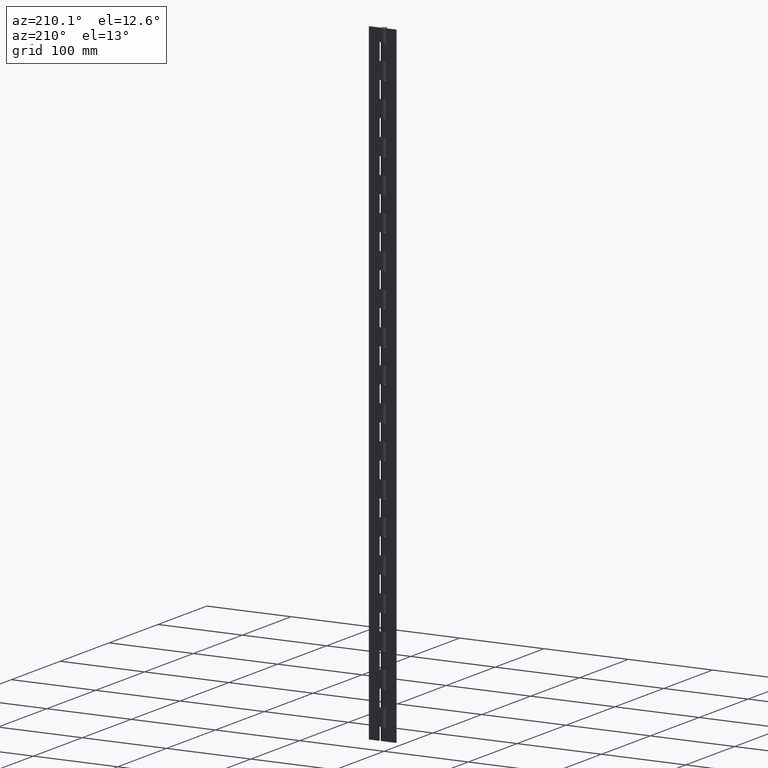
[diagram: clean part render]
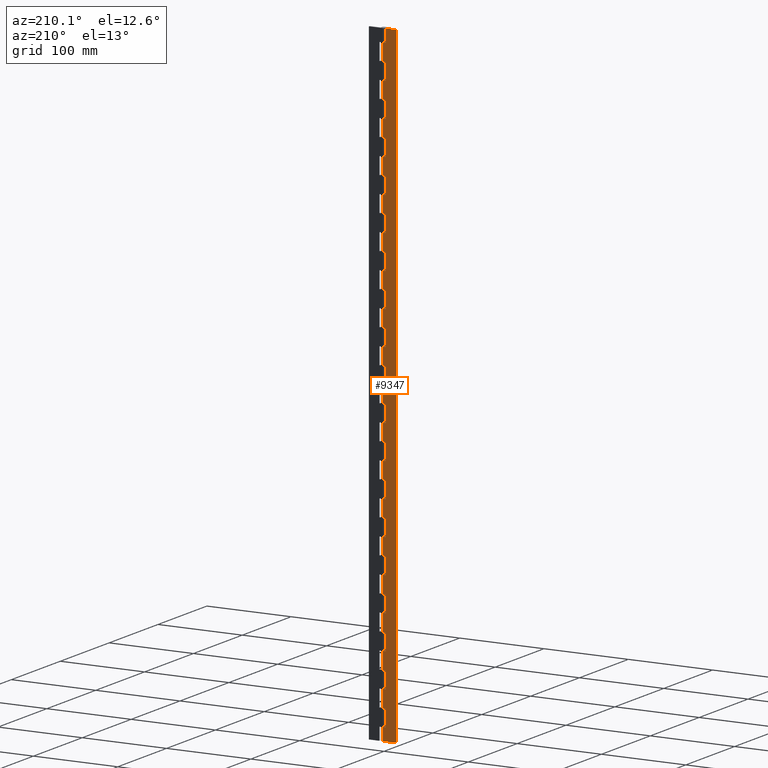
[diagram: same view with one face highlighted and labeled with its STEP entity id]
A machine part, auxiliary view. The second image highlights one B-rep face of the part: STEP entity #9347.
In plain terms, the highlighted face is a freeform B-spline surface patch.
Its self-contained STEP definition (entity closure, byte-faithful):
#5549=CARTESIAN_POINT('',(1.989998E-016,3.250000000000000,15.000021999999850));
#5550=VERTEX_POINT('',#5549);
#5570=CARTESIAN_POINT('',(-4.0,3.250000000000000,15.000021999999850));
#5571=VERTEX_POINT('',#5570);
#5572=CARTESIAN_POINT('',(1.989998E-016,3.250000000000000,15.000021999999850));
#5573=CARTESIAN_POINT('',(-4.0,3.250000000000000,15.000021999999850));
#5574=QUASI_UNIFORM_CURVE('',1,(#5572,#5573),.UNSPECIFIED.,.F.,.U.);
#5575=EDGE_CURVE('',#5550,#5571,#5574,.T.);
#5625=CARTESIAN_POINT('',(1.989998E-016,3.250000000000000,35.000021999999852));
#5626=VERTEX_POINT('',#5625);
#5683=CARTESIAN_POINT('',(-4.0,3.250000000000000,35.000021999999852));
#5684=VERTEX_POINT('',#5683);
#5690=CARTESIAN_POINT('',(-4.0,3.250000000000000,35.000021999999852));
#5691=CARTESIAN_POINT('',(1.989998E-016,3.250000000000000,35.000021999999852));
#5692=QUASI_UNIFORM_CURVE('',1,(#5690,#5691),.UNSPECIFIED.,.F.,.U.);
#5693=EDGE_CURVE('',#5684,#5626,#5692,.T.);
#5704=CARTESIAN_POINT('',(-4.0,3.250000000000000,15.000021999999850));
#5705=CARTESIAN_POINT('',(-4.0,3.250000000000000,35.000021999999852));
#5706=QUASI_UNIFORM_CURVE('',1,(#5704,#5705),.UNSPECIFIED.,.F.,.U.);
#5707=EDGE_CURVE('',#5571,#5684,#5706,.T.);
#5725=CARTESIAN_POINT('',(1.989998E-016,3.250000000000000,55.000021999999802));
#5726=VERTEX_POINT('',#5725);
#5746=CARTESIAN_POINT('',(-4.0,3.250000000000000,55.000021999999802));
#5747=VERTEX_POINT('',#5746);
#5748=CARTESIAN_POINT('',(1.989998E-016,3.250000000000000,55.000021999999802));
#5749=CARTESIAN_POINT('',(-4.0,3.250000000000000,55.000021999999802));
#5750=QUASI_UNIFORM_CURVE('',1,(#5748,#5749),.UNSPECIFIED.,.F.,.U.);
#5751=EDGE_CURVE('',#5726,#5747,#5750,.T.);
#5801=CARTESIAN_POINT('',(1.989998E-016,3.250000000000000,75.000021999999802));
#5802=VERTEX_POINT('',#5801);
#5859=CARTESIAN_POINT('',(-4.0,3.250000000000000,75.000021999999802));
#5860=VERTEX_POINT('',#5859);
#5866=CARTESIAN_POINT('',(-4.0,3.250000000000000,75.000021999999802));
#5867=CARTESIAN_POINT('',(1.989998E-016,3.250000000000000,75.000021999999802));
#5868=QUASI_UNIFORM_CURVE('',1,(#5866,#5867),.UNSPECIFIED.,.F.,.U.);
#5869=EDGE_CURVE('',#5860,#5802,#5868,.T.);
#5880=CARTESIAN_POINT('',(-4.0,3.250000000000000,55.000021999999802));
#5881=CARTESIAN_POINT('',(-4.0,3.250000000000000,75.000021999999802));
#5882=QUASI_UNIFORM_CURVE('',1,(#5880,#5881),.UNSPECIFIED.,.F.,.U.);
#5883=EDGE_CURVE('',#5747,#5860,#5882,.T.);
#5901=CARTESIAN_POINT('',(1.989998E-016,3.250000000000000,95.000021999999802));
#5902=VERTEX_POINT('',#5901);
#5922=CARTESIAN_POINT('',(-4.0,3.250000000000000,95.000021999999802));
#5923=VERTEX_POINT('',#5922);
#5924=CARTESIAN_POINT('',(1.989998E-016,3.250000000000000,95.000021999999802));
#5925=CARTESIAN_POINT('',(-4.0,3.250000000000000,95.000021999999802));
#5926=QUASI_UNIFORM_CURVE('',1,(#5924,#5925),.UNSPECIFIED.,.F.,.U.);
#5927=EDGE_CURVE('',#5902,#5923,#5926,.T.);
#5977=CARTESIAN_POINT('',(1.989998E-016,3.250000000000000,115.000021999999800));
#5978=VERTEX_POINT('',#5977);
#6035=CARTESIAN_POINT('',(-4.0,3.250000000000000,115.000021999999800));
#6036=VERTEX_POINT('',#6035);
#6042=CARTESIAN_POINT('',(-4.0,3.250000000000000,115.000021999999800));
#6043=CARTESIAN_POINT('',(1.989998E-016,3.250000000000000,115.000021999999800));
#6044=QUASI_UNIFORM_CURVE('',1,(#6042,#6043),.UNSPECIFIED.,.F.,.U.);
#6045=EDGE_CURVE('',#6036,#5978,#6044,.T.);
#6056=CARTESIAN_POINT('',(-4.0,3.250000000000000,95.000021999999802));
#6057=CARTESIAN_POINT('',(-4.0,3.250000000000000,115.000021999999800));
#6058=QUASI_UNIFORM_CURVE('',1,(#6056,#6057),.UNSPECIFIED.,.F.,.U.);
#6059=EDGE_CURVE('',#5923,#6036,#6058,.T.);
#6077=CARTESIAN_POINT('',(1.989998E-016,3.250000000000000,135.000021999999800));
#6078=VERTEX_POINT('',#6077);
#6098=CARTESIAN_POINT('',(-4.0,3.250000000000000,135.000021999999800));
#6099=VERTEX_POINT('',#6098);
#6100=CARTESIAN_POINT('',(1.989998E-016,3.250000000000000,135.000021999999800));
#6101=CARTESIAN_POINT('',(-4.0,3.250000000000000,135.000021999999800));
#6102=QUASI_UNIFORM_CURVE('',1,(#6100,#6101),.UNSPECIFIED.,.F.,.U.);
#6103=EDGE_CURVE('',#6078,#6099,#6102,.T.);
#6153=CARTESIAN_POINT('',(1.989998E-016,3.250000000000000,155.000022000000000));
#6154=VERTEX_POINT('',#6153);
#6211=CARTESIAN_POINT('',(-4.0,3.250000000000000,155.000022000000000));
#6212=VERTEX_POINT('',#6211);
#6218=CARTESIAN_POINT('',(-4.0,3.250000000000000,155.000022000000000));
#6219=CARTESIAN_POINT('',(1.989998E-016,3.250000000000000,155.000022000000000));
#6220=QUASI_UNIFORM_CURVE('',1,(#6218,#6219),.UNSPECIFIED.,.F.,.U.);
#6221=EDGE_CURVE('',#6212,#6154,#6220,.T.);
#6232=CARTESIAN_POINT('',(-4.0,3.250000000000000,135.000021999999800));
#6233=CARTESIAN_POINT('',(-4.0,3.250000000000000,155.000022000000000));
#6234=QUASI_UNIFORM_CURVE('',1,(#6232,#6233),.UNSPECIFIED.,.F.,.U.);
#6235=EDGE_CURVE('',#6099,#6212,#6234,.T.);
#6253=CARTESIAN_POINT('',(1.989998E-016,3.250000000000000,175.000022000000000));
#6254=VERTEX_POINT('',#6253);
#6274=CARTESIAN_POINT('',(-4.0,3.250000000000000,175.000022000000000));
#6275=VERTEX_POINT('',#6274);
#6276=CARTESIAN_POINT('',(1.989998E-016,3.250000000000000,175.000022000000000));
#6277=CARTESIAN_POINT('',(-4.0,3.250000000000000,175.000022000000000));
#6278=QUASI_UNIFORM_CURVE('',1,(#6276,#6277),.UNSPECIFIED.,.F.,.U.);
#6279=EDGE_CURVE('',#6254,#6275,#6278,.T.);
#6329=CARTESIAN_POINT('',(1.989998E-016,3.250000000000000,195.000022000000000));
#6330=VERTEX_POINT('',#6329);
#6387=CARTESIAN_POINT('',(-4.0,3.250000000000000,195.000022000000000));
#6388=VERTEX_POINT('',#6387);
#6394=CARTESIAN_POINT('',(-4.0,3.250000000000000,195.000022000000000));
#6395=CARTESIAN_POINT('',(1.989998E-016,3.250000000000000,195.000022000000000));
#6396=QUASI_UNIFORM_CURVE('',1,(#6394,#6395),.UNSPECIFIED.,.F.,.U.);
#6397=EDGE_CURVE('',#6388,#6330,#6396,.T.);
#6408=CARTESIAN_POINT('',(-4.0,3.250000000000000,175.000022000000000));
#6409=CARTESIAN_POINT('',(-4.0,3.250000000000000,195.000022000000000));
#6410=QUASI_UNIFORM_CURVE('',1,(#6408,#6409),.UNSPECIFIED.,.F.,.U.);
#6411=EDGE_CURVE('',#6275,#6388,#6410,.T.);
#6429=CARTESIAN_POINT('',(1.989998E-016,3.250000000000000,215.000022000000000));
#6430=VERTEX_POINT('',#6429);
#6450=CARTESIAN_POINT('',(-4.0,3.250000000000000,215.000022000000000));
#6451=VERTEX_POINT('',#6450);
#6452=CARTESIAN_POINT('',(1.989998E-016,3.250000000000000,215.000022000000000));
#6453=CARTESIAN_POINT('',(-4.0,3.250000000000000,215.000022000000000));
#6454=QUASI_UNIFORM_CURVE('',1,(#6452,#6453),.UNSPECIFIED.,.F.,.U.);
#6455=EDGE_CURVE('',#6430,#6451,#6454,.T.);
#6505=CARTESIAN_POINT('',(1.989998E-016,3.250000000000000,235.000022000000000));
#6506=VERTEX_POINT('',#6505);
#6563=CARTESIAN_POINT('',(-4.0,3.250000000000000,235.000022000000000));
#6564=VERTEX_POINT('',#6563);
#6570=CARTESIAN_POINT('',(-4.0,3.250000000000000,235.000022000000000));
#6571=CARTESIAN_POINT('',(1.989998E-016,3.250000000000000,235.000022000000000));
#6572=QUASI_UNIFORM_CURVE('',1,(#6570,#6571),.UNSPECIFIED.,.F.,.U.);
#6573=EDGE_CURVE('',#6564,#6506,#6572,.T.);
#6584=CARTESIAN_POINT('',(-4.0,3.250000000000000,215.000022000000000));
#6585=CARTESIAN_POINT('',(-4.0,3.250000000000000,235.000022000000000));
#6586=QUASI_UNIFORM_CURVE('',1,(#6584,#6585),.UNSPECIFIED.,.F.,.U.);
#6587=EDGE_CURVE('',#6451,#6564,#6586,.T.);
#6605=CARTESIAN_POINT('',(1.989998E-016,3.250000000000000,255.000022000000000));
#6606=VERTEX_POINT('',#6605);
#6626=CARTESIAN_POINT('',(-4.0,3.250000000000000,255.000022000000000));
#6627=VERTEX_POINT('',#6626);
#6628=CARTESIAN_POINT('',(1.989998E-016,3.250000000000000,255.000022000000000));
#6629=CARTESIAN_POINT('',(-4.0,3.250000000000000,255.000022000000000));
#6630=QUASI_UNIFORM_CURVE('',1,(#6628,#6629),.UNSPECIFIED.,.F.,.U.);
#6631=EDGE_CURVE('',#6606,#6627,#6630,.T.);
#6681=CARTESIAN_POINT('',(1.989998E-016,3.250000000000000,275.000022000000000));
#6682=VERTEX_POINT('',#6681);
#6739=CARTESIAN_POINT('',(-4.0,3.250000000000000,275.000022000000000));
#6740=VERTEX_POINT('',#6739);
#6746=CARTESIAN_POINT('',(-4.0,3.250000000000000,275.000022000000000));
#6747=CARTESIAN_POINT('',(1.989998E-016,3.250000000000000,275.000022000000000));
#6748=QUASI_UNIFORM_CURVE('',1,(#6746,#6747),.UNSPECIFIED.,.F.,.U.);
#6749=EDGE_CURVE('',#6740,#6682,#6748,.T.);
#6760=CARTESIAN_POINT('',(-4.0,3.250000000000000,255.000022000000000));
#6761=CARTESIAN_POINT('',(-4.0,3.250000000000000,275.000022000000000));
#6762=QUASI_UNIFORM_CURVE('',1,(#6760,#6761),.UNSPECIFIED.,.F.,.U.);
#6763=EDGE_CURVE('',#6627,#6740,#6762,.T.);
#6781=CARTESIAN_POINT('',(1.989998E-016,3.250000000000000,295.000021999999890));
#6782=VERTEX_POINT('',#6781);
#6802=CARTESIAN_POINT('',(-4.0,3.250000000000000,295.000021999999890));
#6803=VERTEX_POINT('',#6802);
#6804=CARTESIAN_POINT('',(1.989998E-016,3.250000000000000,295.000021999999890));
#6805=CARTESIAN_POINT('',(-4.0,3.250000000000000,295.000021999999890));
#6806=QUASI_UNIFORM_CURVE('',1,(#6804,#6805),.UNSPECIFIED.,.F.,.U.);
#6807=EDGE_CURVE('',#6782,#6803,#6806,.T.);
#6857=CARTESIAN_POINT('',(1.989998E-016,3.250000000000000,315.000022000000000));
#6858=VERTEX_POINT('',#6857);
#6915=CARTESIAN_POINT('',(-4.0,3.250000000000000,315.000022000000000));
#6916=VERTEX_POINT('',#6915);
#6922=CARTESIAN_POINT('',(-4.0,3.250000000000000,315.000022000000000));
#6923=CARTESIAN_POINT('',(1.989998E-016,3.250000000000000,315.000022000000000));
#6924=QUASI_UNIFORM_CURVE('',1,(#6922,#6923),.UNSPECIFIED.,.F.,.U.);
#6925=EDGE_CURVE('',#6916,#6858,#6924,.T.);
#6936=CARTESIAN_POINT('',(-4.0,3.250000000000000,295.000021999999890));
#6937=CARTESIAN_POINT('',(-4.0,3.250000000000000,315.000022000000000));
#6938=QUASI_UNIFORM_CURVE('',1,(#6936,#6937),.UNSPECIFIED.,.F.,.U.);
#6939=EDGE_CURVE('',#6803,#6916,#6938,.T.);
#6957=CARTESIAN_POINT('',(1.989998E-016,3.250000000000000,335.000022000000000));
#6958=VERTEX_POINT('',#6957);
#6978=CARTESIAN_POINT('',(-4.0,3.250000000000000,335.000022000000000));
#6979=VERTEX_POINT('',#6978);
#6980=CARTESIAN_POINT('',(1.989998E-016,3.250000000000000,335.000022000000000));
#6981=CARTESIAN_POINT('',(-4.0,3.250000000000000,335.000022000000000));
#6982=QUASI_UNIFORM_CURVE('',1,(#6980,#6981),.UNSPECIFIED.,.F.,.U.);
#6983=EDGE_CURVE('',#6958,#6979,#6982,.T.);
#7033=CARTESIAN_POINT('',(1.989998E-016,3.250000000000000,355.000022000000000));
#7034=VERTEX_POINT('',#7033);
#7091=CARTESIAN_POINT('',(-4.0,3.250000000000000,355.000022000000000));
#7092=VERTEX_POINT('',#7091);
#7098=CARTESIAN_POINT('',(-4.0,3.250000000000000,355.000022000000000));
#7099=CARTESIAN_POINT('',(1.989998E-016,3.250000000000000,355.000022000000000));
#7100=QUASI_UNIFORM_CURVE('',1,(#7098,#7099),.UNSPECIFIED.,.F.,.U.);
#7101=EDGE_CURVE('',#7092,#7034,#7100,.T.);
#7112=CARTESIAN_POINT('',(-4.0,3.250000000000000,335.000022000000000));
#7113=CARTESIAN_POINT('',(-4.0,3.250000000000000,355.000022000000000));
#7114=QUASI_UNIFORM_CURVE('',1,(#7112,#7113),.UNSPECIFIED.,.F.,.U.);
#7115=EDGE_CURVE('',#6979,#7092,#7114,.T.);
#7133=CARTESIAN_POINT('',(1.989998E-016,3.250000000000000,375.000022000000000));
#7134=VERTEX_POINT('',#7133);
#7154=CARTESIAN_POINT('',(-4.0,3.250000000000000,375.000022000000000));
#7155=VERTEX_POINT('',#7154);
#7156=CARTESIAN_POINT('',(1.989998E-016,3.250000000000000,375.000022000000000));
#7157=CARTESIAN_POINT('',(-4.0,3.250000000000000,375.000022000000000));
#7158=QUASI_UNIFORM_CURVE('',1,(#7156,#7157),.UNSPECIFIED.,.F.,.U.);
#7159=EDGE_CURVE('',#7134,#7155,#7158,.T.);
#7209=CARTESIAN_POINT('',(1.989998E-016,3.250000000000000,395.000022000000000));
#7210=VERTEX_POINT('',#7209);
#7267=CARTESIAN_POINT('',(-4.0,3.250000000000000,395.000022000000000));
#7268=VERTEX_POINT('',#7267);
#7274=CARTESIAN_POINT('',(-4.0,3.250000000000000,395.000022000000000));
#7275=CARTESIAN_POINT('',(1.989998E-016,3.250000000000000,395.000022000000000));
#7276=QUASI_UNIFORM_CURVE('',1,(#7274,#7275),.UNSPECIFIED.,.F.,.U.);
#7277=EDGE_CURVE('',#7268,#7210,#7276,.T.);
#7288=CARTESIAN_POINT('',(-4.0,3.250000000000000,375.000022000000000));
#7289=CARTESIAN_POINT('',(-4.0,3.250000000000000,395.000022000000000));
#7290=QUASI_UNIFORM_CURVE('',1,(#7288,#7289),.UNSPECIFIED.,.F.,.U.);
#7291=EDGE_CURVE('',#7155,#7268,#7290,.T.);
#7309=CARTESIAN_POINT('',(1.989998E-016,3.250000000000000,415.000022000000000));
#7310=VERTEX_POINT('',#7309);
#7330=CARTESIAN_POINT('',(-4.0,3.250000000000000,415.000022000000000));
#7331=VERTEX_POINT('',#7330);
#7332=CARTESIAN_POINT('',(1.989998E-016,3.250000000000000,415.000022000000000));
#7333=CARTESIAN_POINT('',(-4.0,3.250000000000000,415.000022000000000));
#7334=QUASI_UNIFORM_CURVE('',1,(#7332,#7333),.UNSPECIFIED.,.F.,.U.);
#7335=EDGE_CURVE('',#7310,#7331,#7334,.T.);
#7385=CARTESIAN_POINT('',(1.989998E-016,3.250000000000000,435.000022000000000));
#7386=VERTEX_POINT('',#7385);
#7443=CARTESIAN_POINT('',(-4.0,3.250000000000000,435.000022000000000));
#7444=VERTEX_POINT('',#7443);
#7450=CARTESIAN_POINT('',(-4.0,3.250000000000000,435.000022000000000));
#7451=CARTESIAN_POINT('',(1.989998E-016,3.250000000000000,435.000022000000000));
#7452=QUASI_UNIFORM_CURVE('',1,(#7450,#7451),.UNSPECIFIED.,.F.,.U.);
#7453=EDGE_CURVE('',#7444,#7386,#7452,.T.);
#7464=CARTESIAN_POINT('',(-4.0,3.250000000000000,415.000022000000000));
#7465=CARTESIAN_POINT('',(-4.0,3.250000000000000,435.000022000000000));
#7466=QUASI_UNIFORM_CURVE('',1,(#7464,#7465),.UNSPECIFIED.,.F.,.U.);
#7467=EDGE_CURVE('',#7331,#7444,#7466,.T.);
#7485=CARTESIAN_POINT('',(1.989998E-016,3.250000000000000,455.000022000000000));
#7486=VERTEX_POINT('',#7485);
#7506=CARTESIAN_POINT('',(-4.0,3.250000000000000,455.000022000000000));
#7507=VERTEX_POINT('',#7506);
#7508=CARTESIAN_POINT('',(1.989998E-016,3.250000000000000,455.000022000000000));
#7509=CARTESIAN_POINT('',(-4.0,3.250000000000000,455.000022000000000));
#7510=QUASI_UNIFORM_CURVE('',1,(#7508,#7509),.UNSPECIFIED.,.F.,.U.);
#7511=EDGE_CURVE('',#7486,#7507,#7510,.T.);
#7561=CARTESIAN_POINT('',(1.989998E-016,3.250000000000000,475.000022000000000));
#7562=VERTEX_POINT('',#7561);
#7619=CARTESIAN_POINT('',(-4.0,3.250000000000000,475.000022000000000));
#7620=VERTEX_POINT('',#7619);
#7626=CARTESIAN_POINT('',(-4.0,3.250000000000000,475.000022000000000));
#7627=CARTESIAN_POINT('',(1.989998E-016,3.250000000000000,475.000022000000000));
#7628=QUASI_UNIFORM_CURVE('',1,(#7626,#7627),.UNSPECIFIED.,.F.,.U.);
#7629=EDGE_CURVE('',#7620,#7562,#7628,.T.);
#7640=CARTESIAN_POINT('',(-4.0,3.250000000000000,455.000022000000000));
#7641=CARTESIAN_POINT('',(-4.0,3.250000000000000,475.000022000000000));
#7642=QUASI_UNIFORM_CURVE('',1,(#7640,#7641),.UNSPECIFIED.,.F.,.U.);
#7643=EDGE_CURVE('',#7507,#7620,#7642,.T.);
#7661=CARTESIAN_POINT('',(1.989998E-016,3.250000000000000,495.000022000000000));
#7662=VERTEX_POINT('',#7661);
#7682=CARTESIAN_POINT('',(-4.0,3.250000000000000,495.000022000000000));
#7683=VERTEX_POINT('',#7682);
#7684=CARTESIAN_POINT('',(1.989998E-016,3.250000000000000,495.000022000000000));
#7685=CARTESIAN_POINT('',(-4.0,3.250000000000000,495.000022000000000));
#7686=QUASI_UNIFORM_CURVE('',1,(#7684,#7685),.UNSPECIFIED.,.F.,.U.);
#7687=EDGE_CURVE('',#7662,#7683,#7686,.T.);
#7737=CARTESIAN_POINT('',(1.989998E-016,3.250000000000000,515.000021999999940));
#7738=VERTEX_POINT('',#7737);
#7795=CARTESIAN_POINT('',(-4.0,3.250000000000000,515.000021999999940));
#7796=VERTEX_POINT('',#7795);
#7802=CARTESIAN_POINT('',(-4.0,3.250000000000000,515.000021999999940));
#7803=CARTESIAN_POINT('',(1.989998E-016,3.250000000000000,515.000021999999940));
#7804=QUASI_UNIFORM_CURVE('',1,(#7802,#7803),.UNSPECIFIED.,.F.,.U.);
#7805=EDGE_CURVE('',#7796,#7738,#7804,.T.);
#7816=CARTESIAN_POINT('',(-4.0,3.250000000000000,495.000022000000000));
#7817=CARTESIAN_POINT('',(-4.0,3.250000000000000,515.000021999999940));
#7818=QUASI_UNIFORM_CURVE('',1,(#7816,#7817),.UNSPECIFIED.,.F.,.U.);
#7819=EDGE_CURVE('',#7683,#7796,#7818,.T.);
#7837=CARTESIAN_POINT('',(1.989998E-016,3.250000000000000,535.000021999999940));
#7838=VERTEX_POINT('',#7837);
#7858=CARTESIAN_POINT('',(-4.0,3.250000000000000,535.000021999999940));
#7859=VERTEX_POINT('',#7858);
#7860=CARTESIAN_POINT('',(1.989998E-016,3.250000000000000,535.000021999999940));
#7861=CARTESIAN_POINT('',(-4.0,3.250000000000000,535.000021999999940));
#7862=QUASI_UNIFORM_CURVE('',1,(#7860,#7861),.UNSPECIFIED.,.F.,.U.);
#7863=EDGE_CURVE('',#7838,#7859,#7862,.T.);
#7913=CARTESIAN_POINT('',(1.989998E-016,3.250000000000000,555.000021999999940));
#7914=VERTEX_POINT('',#7913);
#7971=CARTESIAN_POINT('',(-4.0,3.250000000000000,555.000021999999940));
#7972=VERTEX_POINT('',#7971);
#7978=CARTESIAN_POINT('',(-4.0,3.250000000000000,555.000021999999940));
#7979=CARTESIAN_POINT('',(1.989998E-016,3.250000000000000,555.000021999999940));
#7980=QUASI_UNIFORM_CURVE('',1,(#7978,#7979),.UNSPECIFIED.,.F.,.U.);
#7981=EDGE_CURVE('',#7972,#7914,#7980,.T.);
#7992=CARTESIAN_POINT('',(-4.0,3.250000000000000,535.000021999999940));
#7993=CARTESIAN_POINT('',(-4.0,3.250000000000000,555.000021999999940));
#7994=QUASI_UNIFORM_CURVE('',1,(#7992,#7993),.UNSPECIFIED.,.F.,.U.);
#7995=EDGE_CURVE('',#7859,#7972,#7994,.T.);
#8013=CARTESIAN_POINT('',(1.989998E-016,3.250000000000000,575.000021999999940));
#8014=VERTEX_POINT('',#8013);
#8034=CARTESIAN_POINT('',(-4.0,3.250000000000000,575.000021999999940));
#8035=VERTEX_POINT('',#8034);
#8036=CARTESIAN_POINT('',(1.989998E-016,3.250000000000000,575.000021999999940));
#8037=CARTESIAN_POINT('',(-4.0,3.250000000000000,575.000021999999940));
#8038=QUASI_UNIFORM_CURVE('',1,(#8036,#8037),.UNSPECIFIED.,.F.,.U.);
#8039=EDGE_CURVE('',#8014,#8035,#8038,.T.);
#8089=CARTESIAN_POINT('',(1.989998E-016,3.250000000000000,595.000022000000060));
#8090=VERTEX_POINT('',#8089);
#8147=CARTESIAN_POINT('',(-4.0,3.250000000000000,595.000022000000060));
#8148=VERTEX_POINT('',#8147);
#8154=CARTESIAN_POINT('',(-4.0,3.250000000000000,595.000022000000060));
#8155=CARTESIAN_POINT('',(1.989998E-016,3.250000000000000,595.000022000000060));
#8156=QUASI_UNIFORM_CURVE('',1,(#8154,#8155),.UNSPECIFIED.,.F.,.U.);
#8157=EDGE_CURVE('',#8148,#8090,#8156,.T.);
#8168=CARTESIAN_POINT('',(-4.0,3.250000000000000,575.000021999999940));
#8169=CARTESIAN_POINT('',(-4.0,3.250000000000000,595.000022000000060));
#8170=QUASI_UNIFORM_CURVE('',1,(#8168,#8169),.UNSPECIFIED.,.F.,.U.);
#8171=EDGE_CURVE('',#8035,#8148,#8170,.T.);
#8189=CARTESIAN_POINT('',(1.989998E-016,3.250000000000000,615.000022000000060));
#8190=VERTEX_POINT('',#8189);
#8210=CARTESIAN_POINT('',(-4.0,3.250000000000000,615.000022000000060));
#8211=VERTEX_POINT('',#8210);
#8212=CARTESIAN_POINT('',(1.989998E-016,3.250000000000000,615.000022000000060));
#8213=CARTESIAN_POINT('',(-4.0,3.250000000000000,615.000022000000060));
#8214=QUASI_UNIFORM_CURVE('',1,(#8212,#8213),.UNSPECIFIED.,.F.,.U.);
#8215=EDGE_CURVE('',#8190,#8211,#8214,.T.);
#8265=CARTESIAN_POINT('',(1.989998E-016,3.250000000000000,635.000022000000060));
#8266=VERTEX_POINT('',#8265);
#8323=CARTESIAN_POINT('',(-4.0,3.250000000000000,635.000022000000060));
#8324=VERTEX_POINT('',#8323);
#8330=CARTESIAN_POINT('',(-4.0,3.250000000000000,635.000022000000060));
#8331=CARTESIAN_POINT('',(1.989998E-016,3.250000000000000,635.000022000000060));
#8332=QUASI_UNIFORM_CURVE('',1,(#8330,#8331),.UNSPECIFIED.,.F.,.U.);
#8333=EDGE_CURVE('',#8324,#8266,#8332,.T.);
#8344=CARTESIAN_POINT('',(-4.0,3.250000000000000,615.000022000000060));
#8345=CARTESIAN_POINT('',(-4.0,3.250000000000000,635.000022000000060));
#8346=QUASI_UNIFORM_CURVE('',1,(#8344,#8345),.UNSPECIFIED.,.F.,.U.);
#8347=EDGE_CURVE('',#8211,#8324,#8346,.T.);
#8365=CARTESIAN_POINT('',(1.989998E-016,3.250000000000000,655.000021999999940));
#8366=VERTEX_POINT('',#8365);
#8386=CARTESIAN_POINT('',(-4.0,3.250000000000000,655.000021999999940));
#8387=VERTEX_POINT('',#8386);
#8388=CARTESIAN_POINT('',(1.989998E-016,3.250000000000000,655.000021999999940));
#8389=CARTESIAN_POINT('',(-4.0,3.250000000000000,655.000021999999940));
#8390=QUASI_UNIFORM_CURVE('',1,(#8388,#8389),.UNSPECIFIED.,.F.,.U.);
#8391=EDGE_CURVE('',#8366,#8387,#8390,.T.);
#8441=CARTESIAN_POINT('',(1.989998E-016,3.250000000000000,675.000021999999940));
#8442=VERTEX_POINT('',#8441);
#8499=CARTESIAN_POINT('',(-4.0,3.250000000000000,675.000021999999940));
#8500=VERTEX_POINT('',#8499);
#8506=CARTESIAN_POINT('',(-4.0,3.250000000000000,675.000021999999940));
#8507=CARTESIAN_POINT('',(1.989998E-016,3.250000000000000,675.000021999999940));
#8508=QUASI_UNIFORM_CURVE('',1,(#8506,#8507),.UNSPECIFIED.,.F.,.U.);
#8509=EDGE_CURVE('',#8500,#8442,#8508,.T.);
#8520=CARTESIAN_POINT('',(-4.0,3.250000000000000,655.000021999999940));
#8521=CARTESIAN_POINT('',(-4.0,3.250000000000000,675.000021999999940));
#8522=QUASI_UNIFORM_CURVE('',1,(#8520,#8521),.UNSPECIFIED.,.F.,.U.);
#8523=EDGE_CURVE('',#8387,#8500,#8522,.T.);
#8569=CARTESIAN_POINT('',(0.0,3.250000000000000,695.000021999999940));
#8570=VERTEX_POINT('',#8569);
#8590=CARTESIAN_POINT('',(-4.0,3.250000000000000,695.000021999999940));
#8591=VERTEX_POINT('',#8590);
#8592=CARTESIAN_POINT('',(0.0,3.250000000000000,695.000021999999940));
#8593=CARTESIAN_POINT('',(-4.0,3.250000000000000,695.000021999999940));
#8594=QUASI_UNIFORM_CURVE('',1,(#8592,#8593),.UNSPECIFIED.,.F.,.U.);
#8595=EDGE_CURVE('',#8570,#8591,#8594,.T.);
#8619=CARTESIAN_POINT('',(-4.0,3.250000000000000,715.000022000000060));
#8620=VERTEX_POINT('',#8619);
#8626=CARTESIAN_POINT('',(0.0,3.250000000000000,715.000022000000060));
#8627=VERTEX_POINT('',#8626);
#8628=CARTESIAN_POINT('',(-4.0,3.250000000000000,715.000022000000060));
#8629=CARTESIAN_POINT('',(0.0,3.250000000000000,715.000022000000060));
#8630=QUASI_UNIFORM_CURVE('',1,(#8628,#8629),.UNSPECIFIED.,.F.,.U.);
#8631=EDGE_CURVE('',#8620,#8627,#8630,.T.);
#8696=CARTESIAN_POINT('',(-4.0,3.250000000000000,695.000021999999940));
#8697=CARTESIAN_POINT('',(-4.0,3.250000000000000,715.000022000000060));
#8698=QUASI_UNIFORM_CURVE('',1,(#8696,#8697),.UNSPECIFIED.,.F.,.U.);
#8699=EDGE_CURVE('',#8591,#8620,#8698,.T.);
#8717=CARTESIAN_POINT('',(-4.0,3.250000000000000,735.000022000000060));
#8718=VERTEX_POINT('',#8717);
#8724=CARTESIAN_POINT('',(-4.0,3.250000000000000,750.000022000000060));
#8725=VERTEX_POINT('',#8724);
#8726=CARTESIAN_POINT('',(-4.0,3.250000000000000,735.000022000000060));
#8727=CARTESIAN_POINT('',(-4.0,3.250000000000000,750.000022000000060));
#8728=QUASI_UNIFORM_CURVE('',1,(#8726,#8727),.UNSPECIFIED.,.F.,.U.);
#8729=EDGE_CURVE('',#8718,#8725,#8728,.T.);
#8781=CARTESIAN_POINT('',(0.0,3.250000000000000,735.000022000000060));
#8782=VERTEX_POINT('',#8781);
#8802=CARTESIAN_POINT('',(0.0,3.250000000000000,735.000022000000060));
#8803=CARTESIAN_POINT('',(-4.0,3.250000000000000,735.000022000000060));
#8804=QUASI_UNIFORM_CURVE('',1,(#8802,#8803),.UNSPECIFIED.,.F.,.U.);
#8805=EDGE_CURVE('',#8782,#8718,#8804,.T.);
#8821=CARTESIAN_POINT('',(1.989985E-016,3.250000000000000,0.0));
#8822=VERTEX_POINT('',#8821);
#8823=CARTESIAN_POINT('',(-16.0,3.250000000000000,0.0));
#8824=VERTEX_POINT('',#8823);
#8825=CARTESIAN_POINT('',(1.989985E-016,3.250000000000000,0.0));
#8826=CARTESIAN_POINT('',(-16.0,3.250000000000000,0.0));
#8827=QUASI_UNIFORM_CURVE('',1,(#8825,#8826),.UNSPECIFIED.,.F.,.U.);
#8828=EDGE_CURVE('',#8822,#8824,#8827,.T.);
#8907=CARTESIAN_POINT('',(-16.0,3.250000000000000,750.000022000000060));
#8908=VERTEX_POINT('',#8907);
#8909=CARTESIAN_POINT('',(-4.0,3.250000000000000,750.000022000000060));
#8910=CARTESIAN_POINT('',(-16.0,3.250000000000000,750.000022000000060));
#8911=QUASI_UNIFORM_CURVE('',1,(#8909,#8910),.UNSPECIFIED.,.F.,.U.);
#8912=EDGE_CURVE('',#8725,#8908,#8911,.T.);
#8950=CARTESIAN_POINT('',(0.0,3.250000000000000,735.000022000000060));
#8951=CARTESIAN_POINT('',(0.0,3.250000000000000,715.000022000000060));
#8952=QUASI_UNIFORM_CURVE('',1,(#8950,#8951),.UNSPECIFIED.,.F.,.U.);
#8953=EDGE_CURVE('',#8782,#8627,#8952,.T.);
#9182=CARTESIAN_POINT('',(-16.0,3.250000000000000,750.000022000000060));
#9183=CARTESIAN_POINT('',(-16.0,3.250000000000000,0.0));
#9184=QUASI_UNIFORM_CURVE('',1,(#9182,#9183),.UNSPECIFIED.,.F.,.U.);
#9185=EDGE_CURVE('',#8908,#8824,#9184,.T.);
#9190=CARTESIAN_POINT('',(-16.799199968988891,3.250000000000000,787.462500523863920));
#9191=CARTESIAN_POINT('',(-16.799199968988891,3.250000000000000,-37.462518757000069));
#9192=CARTESIAN_POINT('',(0.799200398142338,3.250000000000000,787.462500523863920));
#9193=CARTESIAN_POINT('',(0.799200398142338,3.250000000000000,-37.462518757000069));
#9194=B_SPLINE_SURFACE_WITH_KNOTS('',1,1,((#9190,#9192),(#9191,#9193)),.UNSPECIFIED.,.F.,.F.,.U.,(2,2),(2,2),(0.0,824.925019280864030),(0.0,17.598400367131230),.UNSPECIFIED.);
#9195=CARTESIAN_POINT('',(1.989998E-016,3.250000000000000,55.000021999999802));
#9196=CARTESIAN_POINT('',(1.989998E-016,3.250000000000000,35.000021999999852));
#9197=QUASI_UNIFORM_CURVE('',1,(#9195,#9196),.UNSPECIFIED.,.F.,.U.);
#9198=EDGE_CURVE('',#5726,#5626,#9197,.T.);
#9199=ORIENTED_EDGE('',*,*,#9198,.T.);
#9200=ORIENTED_EDGE('',*,*,#5693,.F.);
#9201=ORIENTED_EDGE('',*,*,#5707,.F.);
#9202=ORIENTED_EDGE('',*,*,#5575,.F.);
#9203=CARTESIAN_POINT('',(1.989998E-016,3.250000000000000,15.000021999999850));
#9204=CARTESIAN_POINT('',(1.989985E-016,3.250000000000000,0.0));
#9205=QUASI_UNIFORM_CURVE('',1,(#9203,#9204),.UNSPECIFIED.,.F.,.U.);
#9206=EDGE_CURVE('',#5550,#8822,#9205,.T.);
#9207=ORIENTED_EDGE('',*,*,#9206,.T.);
#9208=ORIENTED_EDGE('',*,*,#8828,.T.);
#9209=ORIENTED_EDGE('',*,*,#9185,.F.);
#9210=ORIENTED_EDGE('',*,*,#8912,.F.);
#9211=ORIENTED_EDGE('',*,*,#8729,.F.);
#9212=ORIENTED_EDGE('',*,*,#8805,.F.);
#9213=ORIENTED_EDGE('',*,*,#8953,.T.);
#9214=ORIENTED_EDGE('',*,*,#8631,.F.);
#9215=ORIENTED_EDGE('',*,*,#8699,.F.);
#9216=ORIENTED_EDGE('',*,*,#8595,.F.);
#9217=CARTESIAN_POINT('',(0.0,3.250000000000000,695.000021999999940));
#9218=CARTESIAN_POINT('',(1.989998E-016,3.250000000000000,675.000021999999940));
#9219=QUASI_UNIFORM_CURVE('',1,(#9217,#9218),.UNSPECIFIED.,.F.,.U.);
#9220=EDGE_CURVE('',#8570,#8442,#9219,.T.);
#9221=ORIENTED_EDGE('',*,*,#9220,.T.);
#9222=ORIENTED_EDGE('',*,*,#8509,.F.);
#9223=ORIENTED_EDGE('',*,*,#8523,.F.);
#9224=ORIENTED_EDGE('',*,*,#8391,.F.);
#9225=CARTESIAN_POINT('',(1.989998E-016,3.250000000000000,655.000021999999940));
#9226=CARTESIAN_POINT('',(1.989998E-016,3.250000000000000,635.000022000000060));
#9227=QUASI_UNIFORM_CURVE('',1,(#9225,#9226),.UNSPECIFIED.,.F.,.U.);
#9228=EDGE_CURVE('',#8366,#8266,#9227,.T.);
#9229=ORIENTED_EDGE('',*,*,#9228,.T.);
#9230=ORIENTED_EDGE('',*,*,#8333,.F.);
#9231=ORIENTED_EDGE('',*,*,#8347,.F.);
#9232=ORIENTED_EDGE('',*,*,#8215,.F.);
#9233=CARTESIAN_POINT('',(1.989998E-016,3.250000000000000,615.000022000000060));
#9234=CARTESIAN_POINT('',(1.989998E-016,3.250000000000000,595.000022000000060));
#9235=QUASI_UNIFORM_CURVE('',1,(#9233,#9234),.UNSPECIFIED.,.F.,.U.);
#9236=EDGE_CURVE('',#8190,#8090,#9235,.T.);
#9237=ORIENTED_EDGE('',*,*,#9236,.T.);
#9238=ORIENTED_EDGE('',*,*,#8157,.F.);
#9239=ORIENTED_EDGE('',*,*,#8171,.F.);
#9240=ORIENTED_EDGE('',*,*,#8039,.F.);
#9241=CARTESIAN_POINT('',(1.989998E-016,3.250000000000000,575.000021999999940));
#9242=CARTESIAN_POINT('',(1.989998E-016,3.250000000000000,555.000021999999940));
#9243=QUASI_UNIFORM_CURVE('',1,(#9241,#9242),.UNSPECIFIED.,.F.,.U.);
#9244=EDGE_CURVE('',#8014,#7914,#9243,.T.);
#9245=ORIENTED_EDGE('',*,*,#9244,.T.);
#9246=ORIENTED_EDGE('',*,*,#7981,.F.);
#9247=ORIENTED_EDGE('',*,*,#7995,.F.);
#9248=ORIENTED_EDGE('',*,*,#7863,.F.);
#9249=CARTESIAN_POINT('',(1.989998E-016,3.250000000000000,535.000021999999940));
#9250=CARTESIAN_POINT('',(1.989998E-016,3.250000000000000,515.000021999999940));
#9251=QUASI_UNIFORM_CURVE('',1,(#9249,#9250),.UNSPECIFIED.,.F.,.U.);
#9252=EDGE_CURVE('',#7838,#7738,#9251,.T.);
#9253=ORIENTED_EDGE('',*,*,#9252,.T.);
#9254=ORIENTED_EDGE('',*,*,#7805,.F.);
#9255=ORIENTED_EDGE('',*,*,#7819,.F.);
#9256=ORIENTED_EDGE('',*,*,#7687,.F.);
#9257=CARTESIAN_POINT('',(1.989998E-016,3.250000000000000,495.000022000000000));
#9258=CARTESIAN_POINT('',(1.989998E-016,3.250000000000000,475.000022000000000));
#9259=QUASI_UNIFORM_CURVE('',1,(#9257,#9258),.UNSPECIFIED.,.F.,.U.);
#9260=EDGE_CURVE('',#7662,#7562,#9259,.T.);
#9261=ORIENTED_EDGE('',*,*,#9260,.T.);
#9262=ORIENTED_EDGE('',*,*,#7629,.F.);
#9263=ORIENTED_EDGE('',*,*,#7643,.F.);
#9264=ORIENTED_EDGE('',*,*,#7511,.F.);
#9265=CARTESIAN_POINT('',(1.989998E-016,3.250000000000000,455.000022000000000));
#9266=CARTESIAN_POINT('',(1.989998E-016,3.250000000000000,435.000022000000000));
#9267=QUASI_UNIFORM_CURVE('',1,(#9265,#9266),.UNSPECIFIED.,.F.,.U.);
#9268=EDGE_CURVE('',#7486,#7386,#9267,.T.);
#9269=ORIENTED_EDGE('',*,*,#9268,.T.);
#9270=ORIENTED_EDGE('',*,*,#7453,.F.);
#9271=ORIENTED_EDGE('',*,*,#7467,.F.);
#9272=ORIENTED_EDGE('',*,*,#7335,.F.);
#9273=CARTESIAN_POINT('',(1.989998E-016,3.250000000000000,415.000022000000000));
#9274=CARTESIAN_POINT('',(1.989998E-016,3.250000000000000,395.000022000000000));
#9275=QUASI_UNIFORM_CURVE('',1,(#9273,#9274),.UNSPECIFIED.,.F.,.U.);
#9276=EDGE_CURVE('',#7310,#7210,#9275,.T.);
#9277=ORIENTED_EDGE('',*,*,#9276,.T.);
#9278=ORIENTED_EDGE('',*,*,#7277,.F.);
#9279=ORIENTED_EDGE('',*,*,#7291,.F.);
#9280=ORIENTED_EDGE('',*,*,#7159,.F.);
#9281=CARTESIAN_POINT('',(1.989998E-016,3.250000000000000,375.000022000000000));
#9282=CARTESIAN_POINT('',(1.989998E-016,3.250000000000000,355.000022000000000));
#9283=QUASI_UNIFORM_CURVE('',1,(#9281,#9282),.UNSPECIFIED.,.F.,.U.);
#9284=EDGE_CURVE('',#7134,#7034,#9283,.T.);
#9285=ORIENTED_EDGE('',*,*,#9284,.T.);
#9286=ORIENTED_EDGE('',*,*,#7101,.F.);
#9287=ORIENTED_EDGE('',*,*,#7115,.F.);
#9288=ORIENTED_EDGE('',*,*,#6983,.F.);
#9289=CARTESIAN_POINT('',(1.989998E-016,3.250000000000000,335.000022000000000));
#9290=CARTESIAN_POINT('',(1.989998E-016,3.250000000000000,315.000022000000000));
#9291=QUASI_UNIFORM_CURVE('',1,(#9289,#9290),.UNSPECIFIED.,.F.,.U.);
#9292=EDGE_CURVE('',#6958,#6858,#9291,.T.);
#9293=ORIENTED_EDGE('',*,*,#9292,.T.);
#9294=ORIENTED_EDGE('',*,*,#6925,.F.);
#9295=ORIENTED_EDGE('',*,*,#6939,.F.);
#9296=ORIENTED_EDGE('',*,*,#6807,.F.);
#9297=CARTESIAN_POINT('',(1.989998E-016,3.250000000000000,295.000021999999890));
#9298=CARTESIAN_POINT('',(1.989998E-016,3.250000000000000,275.000022000000000));
#9299=QUASI_UNIFORM_CURVE('',1,(#9297,#9298),.UNSPECIFIED.,.F.,.U.);
#9300=EDGE_CURVE('',#6782,#6682,#9299,.T.);
#9301=ORIENTED_EDGE('',*,*,#9300,.T.);
#9302=ORIENTED_EDGE('',*,*,#6749,.F.);
#9303=ORIENTED_EDGE('',*,*,#6763,.F.);
#9304=ORIENTED_EDGE('',*,*,#6631,.F.);
#9305=CARTESIAN_POINT('',(1.989998E-016,3.250000000000000,255.000022000000000));
#9306=CARTESIAN_POINT('',(1.989998E-016,3.250000000000000,235.000022000000000));
#9307=QUASI_UNIFORM_CURVE('',1,(#9305,#9306),.UNSPECIFIED.,.F.,.U.);
#9308=EDGE_CURVE('',#6606,#6506,#9307,.T.);
#9309=ORIENTED_EDGE('',*,*,#9308,.T.);
#9310=ORIENTED_EDGE('',*,*,#6573,.F.);
#9311=ORIENTED_EDGE('',*,*,#6587,.F.);
#9312=ORIENTED_EDGE('',*,*,#6455,.F.);
#9313=CARTESIAN_POINT('',(1.989998E-016,3.250000000000000,215.000022000000000));
#9314=CARTESIAN_POINT('',(1.989998E-016,3.250000000000000,195.000022000000000));
#9315=QUASI_UNIFORM_CURVE('',1,(#9313,#9314),.UNSPECIFIED.,.F.,.U.);
#9316=EDGE_CURVE('',#6430,#6330,#9315,.T.);
#9317=ORIENTED_EDGE('',*,*,#9316,.T.);
#9318=ORIENTED_EDGE('',*,*,#6397,.F.);
#9319=ORIENTED_EDGE('',*,*,#6411,.F.);
#9320=ORIENTED_EDGE('',*,*,#6279,.F.);
#9321=CARTESIAN_POINT('',(1.989998E-016,3.250000000000000,175.000022000000000));
#9322=CARTESIAN_POINT('',(1.989998E-016,3.250000000000000,155.000022000000000));
#9323=QUASI_UNIFORM_CURVE('',1,(#9321,#9322),.UNSPECIFIED.,.F.,.U.);
#9324=EDGE_CURVE('',#6254,#6154,#9323,.T.);
#9325=ORIENTED_EDGE('',*,*,#9324,.T.);
#9326=ORIENTED_EDGE('',*,*,#6221,.F.);
#9327=ORIENTED_EDGE('',*,*,#6235,.F.);
#9328=ORIENTED_EDGE('',*,*,#6103,.F.);
#9329=CARTESIAN_POINT('',(1.989998E-016,3.250000000000000,135.000021999999800));
#9330=CARTESIAN_POINT('',(1.989998E-016,3.250000000000000,115.000021999999800));
#9331=QUASI_UNIFORM_CURVE('',1,(#9329,#9330),.UNSPECIFIED.,.F.,.U.);
#9332=EDGE_CURVE('',#6078,#5978,#9331,.T.);
#9333=ORIENTED_EDGE('',*,*,#9332,.T.);
#9334=ORIENTED_EDGE('',*,*,#6045,.F.);
#9335=ORIENTED_EDGE('',*,*,#6059,.F.);
#9336=ORIENTED_EDGE('',*,*,#5927,.F.);
#9337=CARTESIAN_POINT('',(1.989998E-016,3.250000000000000,95.000021999999802));
#9338=CARTESIAN_POINT('',(1.989998E-016,3.250000000000000,75.000021999999802));
#9339=QUASI_UNIFORM_CURVE('',1,(#9337,#9338),.UNSPECIFIED.,.F.,.U.);
#9340=EDGE_CURVE('',#5902,#5802,#9339,.T.);
#9341=ORIENTED_EDGE('',*,*,#9340,.T.);
#9342=ORIENTED_EDGE('',*,*,#5869,.F.);
#9343=ORIENTED_EDGE('',*,*,#5883,.F.);
#9344=ORIENTED_EDGE('',*,*,#5751,.F.);
#9345=EDGE_LOOP('',(#9199,#9200,#9201,#9202,#9207,#9208,#9209,#9210,#9211,#9212,#9213,#9214,#9215,#9216,#9221,#9222,#9223,#9224,#9229,#9230,#9231,#9232,#9237,#9238,#9239,#9240,#9245,#9246,#9247,#9248,#9253,#9254,#9255,#9256,#9261,#9262,#9263,#9264,#9269,#9270,#9271,#9272,#9277,#9278,#9279,#9280,#9285,#9286,#9287,#9288,#9293,#9294,#9295,#9296,#9301,#9302,#9303,#9304,#9309,#9310,#9311,#9312,#9317,#9318,#9319,#9320,#9325,#9326,#9327,#9328,#9333,#9334,#9335,#9336,#9341,#9342,#9343,#9344));
#9346=FACE_OUTER_BOUND('',#9345,.T.);
#9347=ADVANCED_FACE('',(#9346),#9194,.F.);